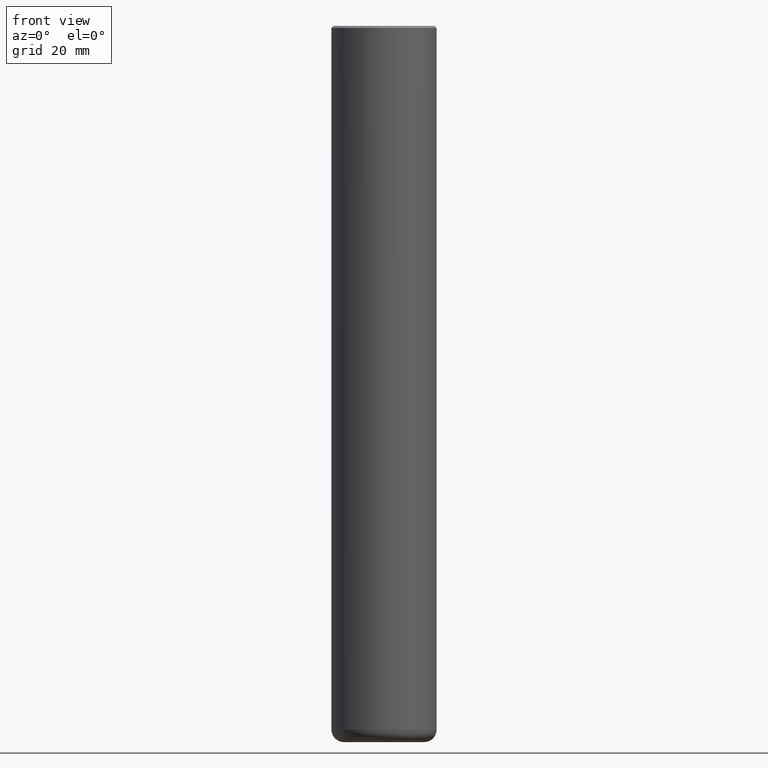
[diagram: clean part render]
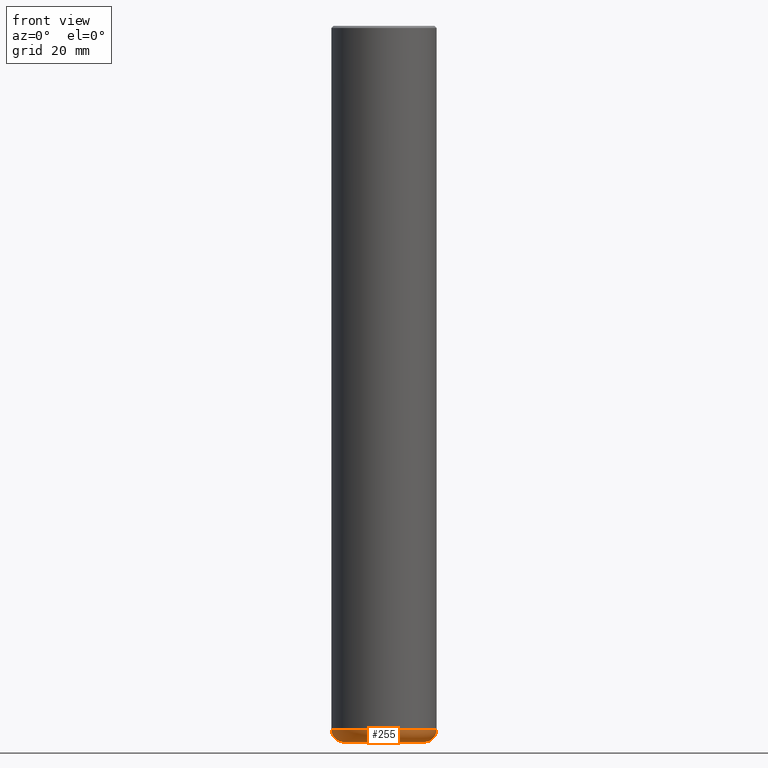
[diagram: same view with one face highlighted and labeled with its STEP entity id]
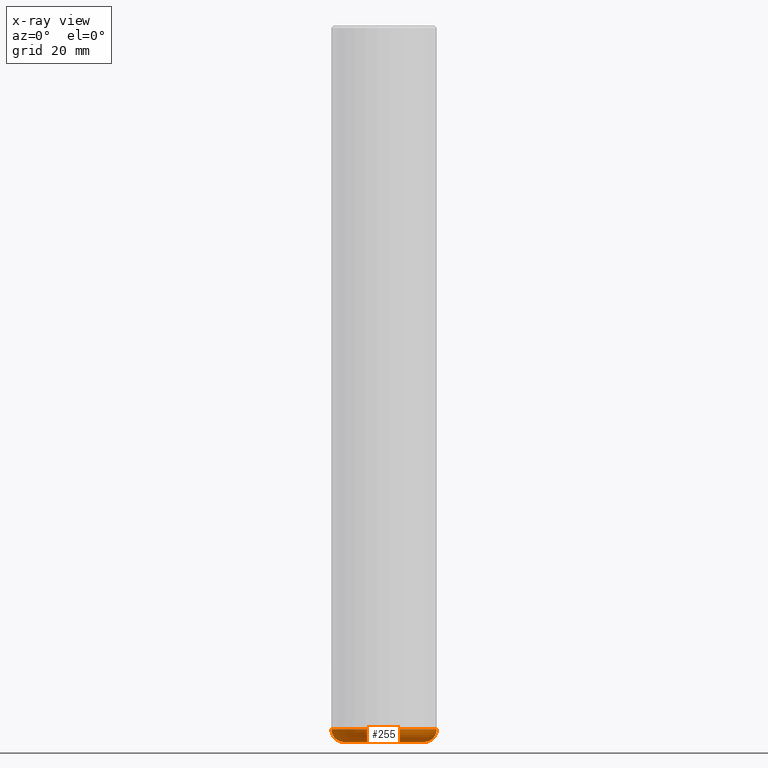
[diagram: x-ray of the same camera — body ghosted, the highlighted face saturated]
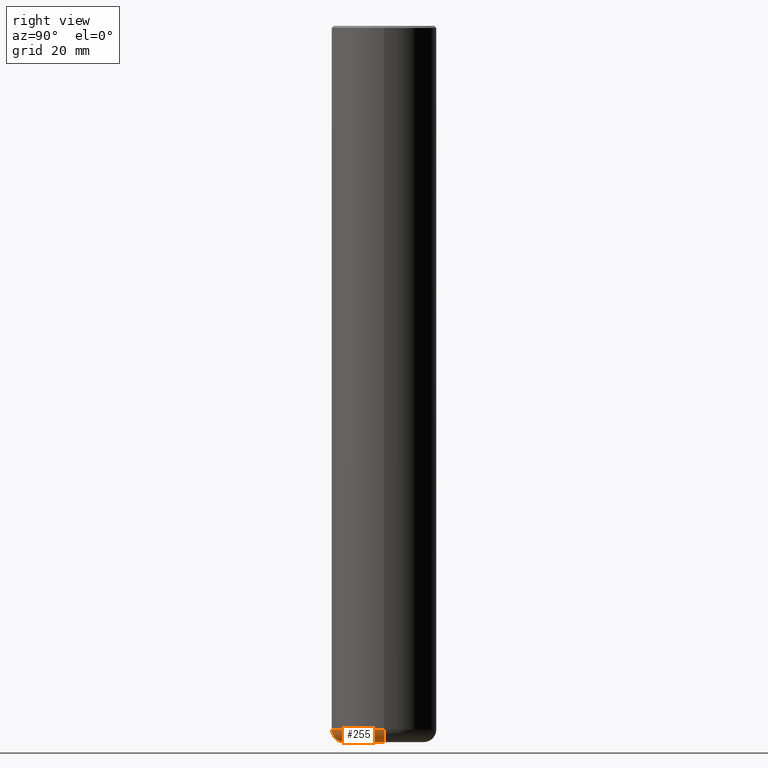
[diagram: same view with one face highlighted and labeled with its STEP entity id]
A machine part, front view. The second image highlights one B-rep face of the part: STEP entity #255.
The next image is the same camera in x-ray: the body ghosted, the highlighted face saturated — about 0% of this face is hidden behind the body in this view.
A second angle (right view) of the same face is appended — the face is thin or edge-on in the first view.
In plain terms, the highlighted toroidal blend (fillet) surface has major radius 9.5009 mm and minor (blend) radius 2.9997 mm.
Its self-contained STEP definition (entity closure, byte-faithful):
#3 = CARTESIAN_POINT ( 'NONE',  ( -0.4921499999999996988, -1.945885543258258788E-14, -6.574799999999999756 ) ) ;
#25 = TOROIDAL_SURFACE ( 'NONE', #164, 0.3740499999999999381, 0.1180999999999995248 ) ;
#26 = ORIENTED_EDGE ( 'NONE', *, *, #193, .F. ) ;
#30 = CIRCLE ( 'NONE', #228, 0.1180999999999994832 ) ;
#32 = DIRECTION ( 'NONE',  ( -6.982962677686266711E-15, -1.000000000000000000, 3.491481338843145583E-15 ) ) ;
#38 = EDGE_CURVE ( 'NONE', #351, #55, #30, .T. ) ;
#47 = DIRECTION ( 'NONE',  ( 1.000000000000000000, -6.982962677686265922E-15, 4.883557194083112901E-29 ) ) ;
#55 = VERTEX_POINT ( 'NONE', #197 ) ;
#63 = DIRECTION ( 'NONE',  ( 1.000000000000000000, -6.982962677686265133E-15, 0.000000000000000000 ) ) ;
#66 = DIRECTION ( 'NONE',  ( -1.000000000000000000, 7.105427357601001859E-15, 0.000000000000000000 ) ) ;
#69 = DIRECTION ( 'NONE',  ( -2.445468806185136597E-29, 3.491481338843145583E-15, 1.000000000000000000 ) ) ;
#71 = EDGE_CURVE ( 'NONE', #87, #351, #75, .T. ) ;
#75 = CIRCLE ( 'NONE', #219, 0.3740499999999999381 ) ;
#87 = VERTEX_POINT ( 'NONE', #361 ) ;
#93 = CIRCLE ( 'NONE', #192, 0.1180999999999994832 ) ;
#100 = DIRECTION ( 'NONE',  ( 7.105427357601001859E-15, 1.000000000000000000, -3.491481338843145583E-15 ) ) ;
#121 = ORIENTED_EDGE ( 'NONE', *, *, #161, .F. ) ;
#126 = VERTEX_POINT ( 'NONE', #3 ) ;
#127 = EDGE_LOOP ( 'NONE', ( #121, #321, #336, #26 ) ) ;
#136 = CARTESIAN_POINT ( 'NONE',  ( 0.3740499999999999381, -2.598011264233183059E-14, -6.692899999999998961 ) ) ;
#148 = CIRCLE ( 'NONE', #353, 0.4921500000000000319 ) ;
#161 = EDGE_CURVE ( 'NONE', #87, #126, #93, .T. ) ;
#164 = AXIS2_PLACEMENT_3D ( 'NONE', #340, #69, #47 ) ;
#166 = DIRECTION ( 'NONE',  ( -2.445468806185136597E-29, 3.491481338843145583E-15, 1.000000000000000000 ) ) ;
#192 = AXIS2_PLACEMENT_3D ( 'NONE', #268, #100, #66 ) ;
#193 = EDGE_CURVE ( 'NONE', #126, #55, #148, .T. ) ;
#197 = CARTESIAN_POINT ( 'NONE',  ( 0.4921499999999996988, -2.639245658844920945E-14, -6.574799999999999756 ) ) ;
#198 = DIRECTION ( 'NONE',  ( -2.445468806185136597E-29, 3.491481338843145583E-15, 1.000000000000000000 ) ) ;
#199 = CARTESIAN_POINT ( 'NONE',  ( 1.607846830690603466E-28, -2.295579150662591525E-14, -6.574799999999999756 ) ) ;
#219 = AXIS2_PLACEMENT_3D ( 'NONE', #394, #198, #63 ) ;
#228 = AXIS2_PLACEMENT_3D ( 'NONE', #300, #32, #329 ) ;
#255 = ADVANCED_FACE ( 'NONE', ( #273 ), #25, .T. ) ;
#268 = CARTESIAN_POINT ( 'NONE',  ( -0.3740499999999999381, -2.029800640351526055E-14, -6.574799999999999756 ) ) ;
#273 = FACE_OUTER_BOUND ( 'NONE', #127, .T. ) ;
#299 = DIRECTION ( 'NONE',  ( 1.000000000000000000, -6.982962677686265133E-15, 0.000000000000000000 ) ) ;
#300 = CARTESIAN_POINT ( 'NONE',  ( 0.3740499999999999381, -2.556776869621446119E-14, -6.574799999999999756 ) ) ;
#321 = ORIENTED_EDGE ( 'NONE', *, *, #71, .T. ) ;
#329 = DIRECTION ( 'NONE',  ( 1.000000000000000000, -6.982962677686270655E-15, 0.000000000000000000 ) ) ;
#336 = ORIENTED_EDGE ( 'NONE', *, *, #38, .T. ) ;
#340 = CARTESIAN_POINT ( 'NONE',  ( 1.607846830690603466E-28, -2.295579150662591525E-14, -6.574799999999999756 ) ) ;
#351 = VERTEX_POINT ( 'NONE', #136 ) ;
#353 = AXIS2_PLACEMENT_3D ( 'NONE', #199, #166, #299 ) ;
#361 = CARTESIAN_POINT ( 'NONE',  ( -0.3740499999999999381, -2.008460289110761207E-14, -6.692899999999998961 ) ) ;
#394 = CARTESIAN_POINT ( 'NONE',  ( 1.636727817291649742E-28, -2.336813545274328465E-14, -6.692899999999998961 ) ) ;